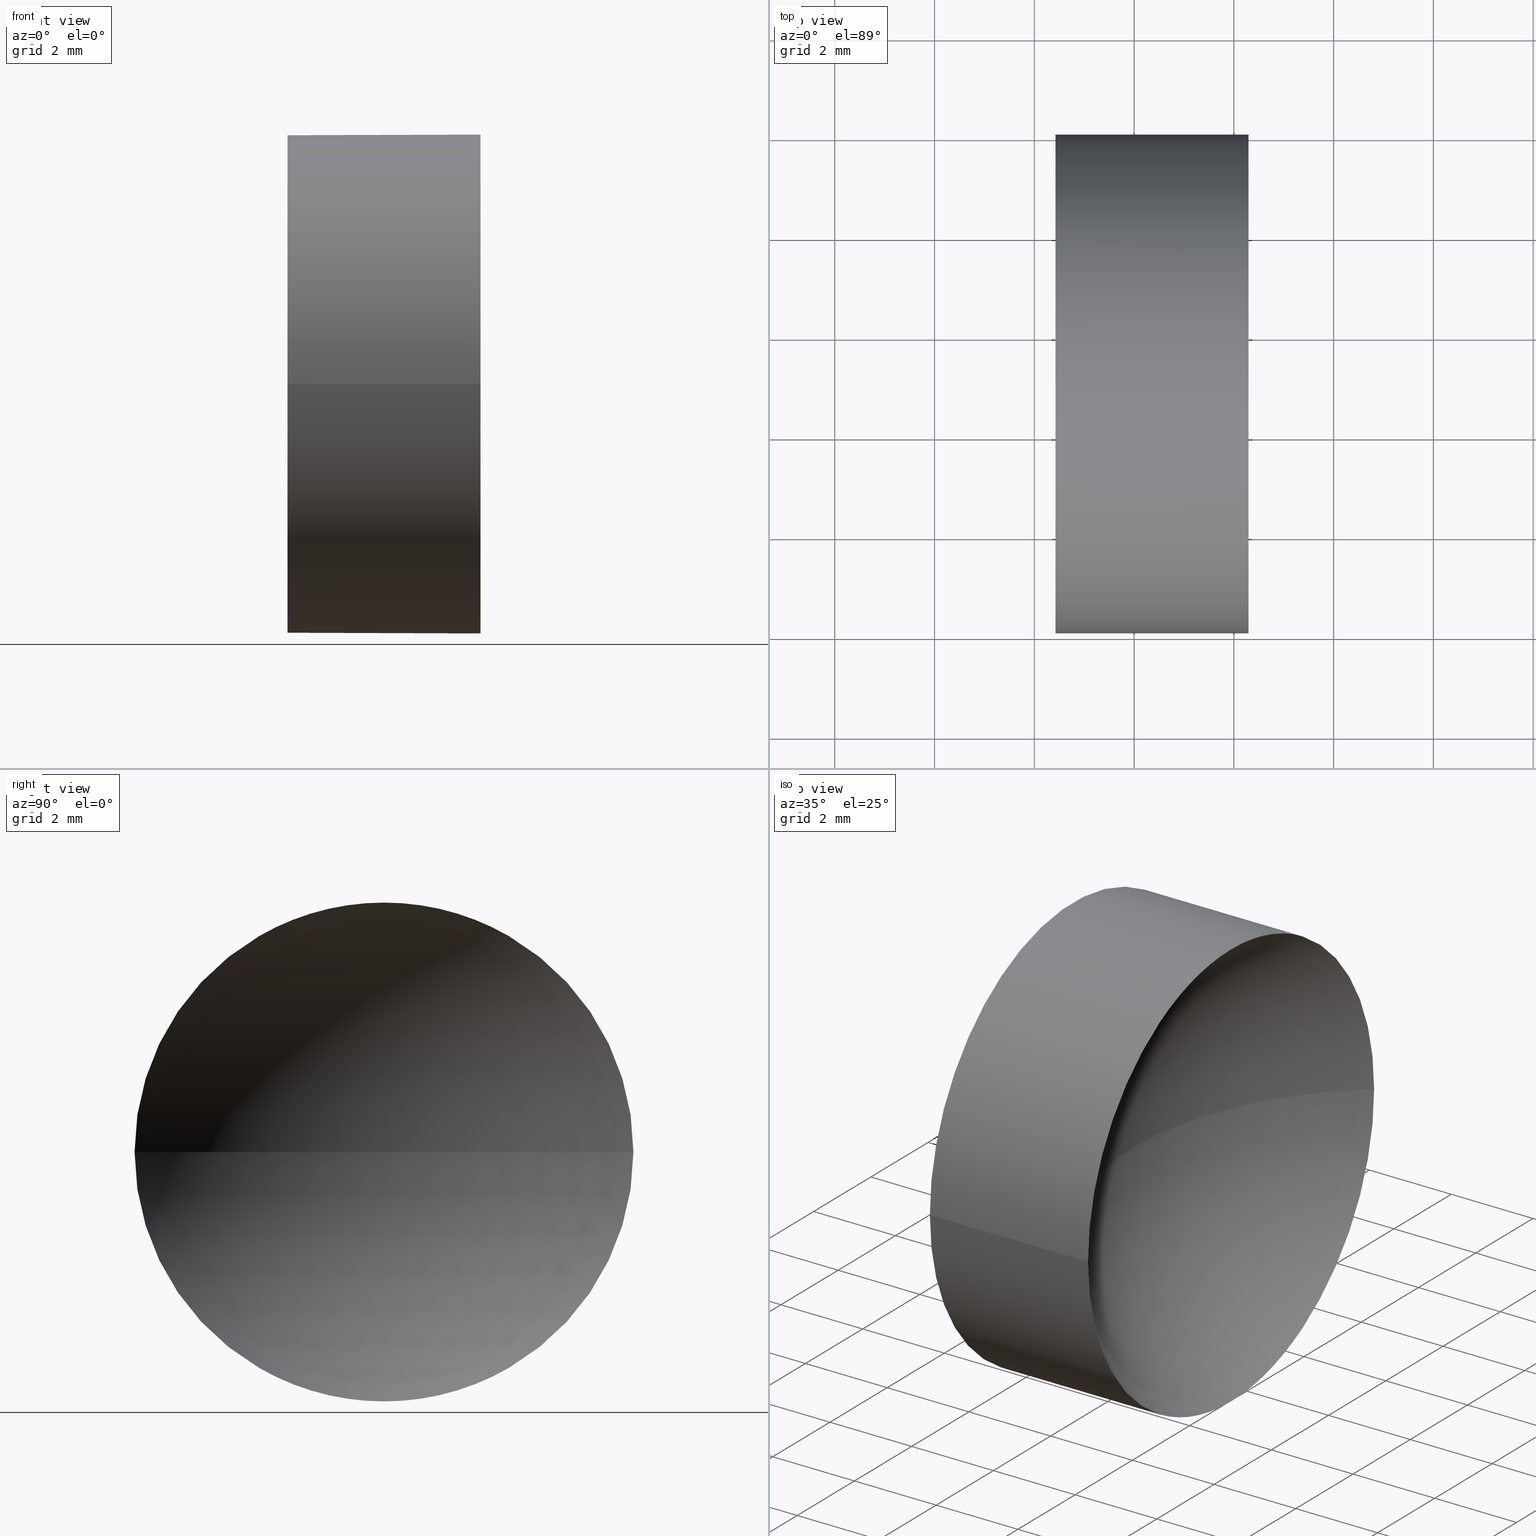
[diagram: canonical four-view strip — front | top / right | iso, engineering-drawing reading convention]
A machine part, canonical four-view strip (front | top / right | iso — engineering-drawing reading convention). The complete STEP part file that produces these views, byte-faithful:
ISO-10303-21;
HEADER;
FILE_DESCRIPTION (( 'STEP AP214' ),
    '1' );
FILE_NAME ('120130.STEP',
    '2019-06-19T02:17:15',
    ( '' ),
    ( '' ),
    'SwSTEP 2.0',
    'SolidWorks 2016',
    '' );
FILE_SCHEMA (( 'AUTOMOTIVE_DESIGN' ));
ENDSEC;

DATA;
#1 = DIRECTION ( 'NONE',  ( -1.000000000000000000, 3.159171411554934600E-016, -0.0000000000000000000 ) ) ;
#2 = EDGE_LOOP ( 'NONE', ( #71, #49, #50 ) ) ;
#3 = DIRECTION ( 'NONE',  ( -3.868869157118576300E-032, -1.224646799147353200E-016, 1.000000000000000000 ) ) ;
#4 =( NAMED_UNIT ( * ) PLANE_ANGLE_UNIT ( ) SI_UNIT ( $, .RADIAN. ) );
#5 = DIRECTION ( 'NONE',  ( 0.0000000000000000000, -0.0000000000000000000, -1.000000000000000000 ) ) ;
#6 = EDGE_CURVE ( 'NONE', #61, #115, #154, .T. ) ;
#7 = SURFACE_STYLE_FILL_AREA ( #151 ) ;
#8 = CIRCLE ( 'NONE', #165, 6.460000000000000900 ) ;
#9 = CIRCLE ( 'NONE', #74, 5.000000000000002700 ) ;
#10 = EDGE_CURVE ( 'NONE', #105, #77, #127, .T. ) ;
#11 = EDGE_CURVE ( 'NONE', #105, #104, #9, .T. ) ;
#12 = CARTESIAN_POINT ( 'NONE',  ( 22.42423205362066000, 13.03112609140304200, 0.0000000000000000000 ) ) ;
#13 = PLANE ( 'NONE',  #39 ) ;
#14 = ADVANCED_FACE ( 'NONE', ( #41 ), #13, .F. ) ;
#15 = ORIENTED_EDGE ( 'NONE', *, *, #16, .T. ) ;
#16 = EDGE_CURVE ( 'NONE', #104, #77, #8, .T. ) ;
#17 = ORIENTED_EDGE ( 'NONE', *, *, #47, .F. ) ;
#18 = STYLED_ITEM ( 'NONE', ( #34 ), #90 ) ;
#19 = PRODUCT_DEFINITION_SHAPE ( 'NONE', 'NONE',  #22 ) ;
#20 = EDGE_CURVE ( 'NONE', #105, #61, #152, .T. ) ;
#21 = ORIENTED_EDGE ( 'NONE', *, *, #10, .F. ) ;
#22 = PRODUCT_DEFINITION ( 'δ֪', '', #134, #68 ) ;
#23 = DIRECTION ( 'NONE',  ( 3.159171411554934600E-016, 1.000000000000000000, 0.0000000000000000000 ) ) ;
#24 = FILL_AREA_STYLE_COLOUR ( '', #46 ) ;
#25 = DIRECTION ( 'NONE',  ( 0.0000000000000000000, -1.000000000000000000, 0.0000000000000000000 ) ) ;
#26 = DIRECTION ( 'NONE',  ( -5.370660916336863500E-016, -1.000000000000000000, 0.0000000000000000000 ) ) ;
#27 = DIRECTION ( 'NONE',  ( -1.000000000000000000, 0.0000000000000000000, 0.0000000000000000000 ) ) ;
#28 = VECTOR ( 'NONE', #103, 1000.000000000000000 ) ;
#29 = AXIS2_PLACEMENT_3D ( 'NONE', #156, #124, #69 ) ;
#30 = AXIS2_PLACEMENT_3D ( 'NONE', #135, #160, #129 ) ;
#31 = SURFACE_STYLE_USAGE ( .BOTH. , #113 ) ;
#32 = STYLED_ITEM ( 'NONE', ( #150 ), #121 ) ;
#33 = PRESENTATION_LAYER_ASSIGNMENT (  '', '', ( #18 ) ) ;
#34 = PRESENTATION_STYLE_ASSIGNMENT (( #31 ) ) ;
#35 = AXIS2_PLACEMENT_3D ( 'NONE', #83, #67, #96 ) ;
#36 = CARTESIAN_POINT ( 'NONE',  ( 26.29380420313851700, 18.03112609140304600, 6.123233995736769200E-016 ) ) ;
#37 = ADVANCED_FACE ( 'NONE', ( #140 ), #60, .T. ) ;
#38 = CARTESIAN_POINT ( 'NONE',  ( 21.50597511808246100, 18.03112609140304200, 6.123233995736768300E-016 ) ) ;
#39 = AXIS2_PLACEMENT_3D ( 'NONE', #40, #94, #23 ) ;
#40 = CARTESIAN_POINT ( 'NONE',  ( 22.42423205362066000, 13.03112609140304200, 0.0000000000000000000 ) ) ;
#41 = FACE_OUTER_BOUND ( 'NONE', #164, .T. ) ;
#42 = EDGE_LOOP ( 'NONE', ( #128, #159, #112, #141 ) ) ;
#43 = AXIS2_PLACEMENT_3D ( 'NONE', #12, #149, #63 ) ;
#44 = PRODUCT_CONTEXT ( 'NONE', #57, 'mechanical' ) ;
#45 = UNCERTAINTY_MEASURE_WITH_UNIT (LENGTH_MEASURE( 1.000000000000000100E-005 ), #142, 'distance_accuracy_value', 'NONE');
#46 = COLOUR_RGB ( '',1.000000000000000000, 1.000000000000000000, 1.000000000000000000 ) ;
#47 = EDGE_CURVE ( 'NONE', #104, #105, #79, .T. ) ;
#48 = SPHERICAL_SURFACE ( 'NONE', #55, 6.460000000000000900 ) ;
#49 = ORIENTED_EDGE ( 'NONE', *, *, #10, .T. ) ;
#50 = ORIENTED_EDGE ( 'NONE', *, *, #16, .F. ) ;
#51 = CARTESIAN_POINT ( 'NONE',  ( 22.42423205362066000, 8.031126091403040200, 0.0000000000000000000 ) ) ;
#52 = ADVANCED_FACE ( 'NONE', ( #76 ), #117, .F. ) ;
#53 = PRESENTATION_LAYER_ASSIGNMENT (  '', '', ( #32 ) ) ;
#54 = SURFACE_SIDE_STYLE ('',( #75 ) ) ;
#55 = AXIS2_PLACEMENT_3D ( 'NONE', #155, #111, #100 ) ;
#56 = CARTESIAN_POINT ( 'NONE',  ( 21.50597511808246100, 8.031126091403040200, 0.0000000000000000000 ) ) ;
#57 = APPLICATION_CONTEXT ( 'automotive_design' ) ;
#58 = AXIS2_PLACEMENT_3D ( 'NONE', #99, #106, #26 ) ;
#59 = ORIENTED_EDGE ( 'NONE', *, *, #118, .T. ) ;
#60 = CYLINDRICAL_SURFACE ( 'NONE', #162, 5.000000000000000900 ) ;
#61 = VERTEX_POINT ( 'NONE', #107 ) ;
#62 = AXIS2_PLACEMENT_3D ( 'NONE', #64, #138, #25 ) ;
#63 = DIRECTION ( 'NONE',  ( 0.0000000000000000000, -1.000000000000000000, 0.0000000000000000000 ) ) ;
#64 = CARTESIAN_POINT ( 'NONE',  ( 21.50597511808246100, 13.03112609140304200, 0.0000000000000000000 ) ) ;
#65 = DIRECTION ( 'NONE',  ( 0.0000000000000000000, -1.000000000000000000, -1.224646799147353200E-016 ) ) ;
#66 = ORIENTED_EDGE ( 'NONE', *, *, #130, .F. ) ;
#67 = DIRECTION ( 'NONE',  ( -1.000000000000000000, 3.159171411554934600E-016, -0.0000000000000000000 ) ) ;
#68 = PRODUCT_DEFINITION_CONTEXT ( 'detailed design', #102, 'design' ) ;
#69 = DIRECTION ( 'NONE',  ( 0.0000000000000000000, -1.000000000000000000, 0.0000000000000000000 ) ) ;
#70 =( NAMED_UNIT ( * ) SI_UNIT ( $, .STERADIAN. ) SOLID_ANGLE_UNIT ( ) );
#71 = ORIENTED_EDGE ( 'NONE', *, *, #11, .F. ) ;
#72 = APPLICATION_PROTOCOL_DEFINITION ( 'draft international standard', 'automotive_design', 1998, #57 ) ;
#73 =( NAMED_UNIT ( * ) PLANE_ANGLE_UNIT ( ) SI_UNIT ( $, .RADIAN. ) );
#74 = AXIS2_PLACEMENT_3D ( 'NONE', #122, #95, #146 ) ;
#75 = SURFACE_STYLE_FILL_AREA ( #82 ) ;
#76 = FACE_OUTER_BOUND ( 'NONE', #133, .T. ) ;
#77 = VERTEX_POINT ( 'NONE', #137 ) ;
#78 = UNCERTAINTY_MEASURE_WITH_UNIT (LENGTH_MEASURE( 1.000000000000000100E-005 ), #84, 'distance_accuracy_value', 'NONE');
#79 = CIRCLE ( 'NONE', #29, 5.000000000000002700 ) ;
#80 = DIRECTION ( 'NONE',  ( -1.000000000000000000, 3.159171411554934600E-016, -0.0000000000000000000 ) ) ;
#81 = ORIENTED_EDGE ( 'NONE', *, *, #118, .F. ) ;
#82 = FILL_AREA_STYLE ('',( #24 ) ) ;
#83 = CARTESIAN_POINT ( 'NONE',  ( 22.42423205362066000, 13.03112609140304200, 0.0000000000000000000 ) ) ;
#84 =( LENGTH_UNIT ( ) NAMED_UNIT ( * ) SI_UNIT ( .MILLI., .METRE. ) );
#85 = CARTESIAN_POINT ( 'NONE',  ( 30.38423205362066100, 13.03112609140304000, 0.0000000000000000000 ) ) ;
#86 = FACE_OUTER_BOUND ( 'NONE', #2, .T. ) ;
#87 = MECHANICAL_DESIGN_GEOMETRIC_PRESENTATION_REPRESENTATION (  '', ( #32 ), #131 ) ;
#88 = FACE_OUTER_BOUND ( 'NONE', #166, .T. ) ;
#89 = PRODUCT ( '120130', '120130', '', ( #44 ) ) ;
#90 = ADVANCED_BREP_SHAPE_REPRESENTATION ( '120130', ( #121, #30 ), #143 ) ;
#91 = PRODUCT_RELATED_PRODUCT_CATEGORY ( 'part', '', ( #89 ) ) ;
#92 = COLOUR_RGB ( '',1.000000000000000000, 1.000000000000000000, 1.000000000000000000 ) ;
#93 = LINE ( 'NONE', #56, #28 ) ;
#94 = DIRECTION ( 'NONE',  ( 1.000000000000000000, -3.159171411554934600E-016, 0.0000000000000000000 ) ) ;
#95 = DIRECTION ( 'NONE',  ( -1.000000000000000000, 3.159171411554934600E-016, -0.0000000000000000000 ) ) ;
#96 = DIRECTION ( 'NONE',  ( 0.0000000000000000000, -1.000000000000000000, 0.0000000000000000000 ) ) ;
#97 =( NAMED_UNIT ( * ) SI_UNIT ( $, .STERADIAN. ) SOLID_ANGLE_UNIT ( ) );
#98 = ADVANCED_FACE ( 'NONE', ( #88 ), #108, .T. ) ;
#99 = CARTESIAN_POINT ( 'NONE',  ( 30.38423205362066100, 13.03112609140304000, 0.0000000000000000000 ) ) ;
#100 = DIRECTION ( 'NONE',  ( -5.370660916336863500E-016, -1.000000000000000000, 0.0000000000000000000 ) ) ;
#101 =( NAMED_UNIT ( * ) PLANE_ANGLE_UNIT ( ) SI_UNIT ( $, .RADIAN. ) );
#102 = APPLICATION_CONTEXT ( 'automotive_design' ) ;
#103 = DIRECTION ( 'NONE',  ( -1.000000000000000000, 3.159171411554934600E-016, -0.0000000000000000000 ) ) ;
#104 = VERTEX_POINT ( 'NONE', #120 ) ;
#105 = VERTEX_POINT ( 'NONE', #36 ) ;
#106 = DIRECTION ( 'NONE',  ( 0.0000000000000000000, 0.0000000000000000000, 1.000000000000000000 ) ) ;
#107 = CARTESIAN_POINT ( 'NONE',  ( 22.42423205362066000, 18.03112609140304200, 6.123233995736768300E-016 ) ) ;
#108 = CYLINDRICAL_SURFACE ( 'NONE', #62, 5.000000000000000900 ) ;
#109 = APPLICATION_PROTOCOL_DEFINITION ( 'draft international standard', 'automotive_design', 1998, #102 ) ;
#110 =( NAMED_UNIT ( * ) SI_UNIT ( $, .STERADIAN. ) SOLID_ANGLE_UNIT ( ) );
#111 = DIRECTION ( 'NONE',  ( 0.0000000000000000000, 0.0000000000000000000, 1.000000000000000000 ) ) ;
#112 = ORIENTED_EDGE ( 'NONE', *, *, #130, .T. ) ;
#113 = SURFACE_SIDE_STYLE ('',( #7 ) ) ;
#114 = CIRCLE ( 'NONE', #35, 5.000000000000000900 ) ;
#115 = VERTEX_POINT ( 'NONE', #51 ) ;
#116 = VECTOR ( 'NONE', #1, 1000.000000000000000 ) ;
#117 = SPHERICAL_SURFACE ( 'NONE', #58, 6.460000000000000900 ) ;
#118 = EDGE_CURVE ( 'NONE', #115, #61, #114, .T. ) ;
#119 = ORIENTED_EDGE ( 'NONE', *, *, #6, .T. ) ;
#120 = CARTESIAN_POINT ( 'NONE',  ( 26.29380420313851700, 8.031126091403036700, 0.0000000000000000000 ) ) ;
#121 = MANIFOLD_SOLID_BREP ( '��ת1', #136 ) ;
#122 = CARTESIAN_POINT ( 'NONE',  ( 26.29380420313851700, 13.03112609140304000, 0.0000000000000000000 ) ) ;
#123 =( GEOMETRIC_REPRESENTATION_CONTEXT ( 3 ) GLOBAL_UNCERTAINTY_ASSIGNED_CONTEXT ( ( #45 ) ) GLOBAL_UNIT_ASSIGNED_CONTEXT ( ( #142, #73, #70 ) ) REPRESENTATION_CONTEXT ( 'NONE', 'WORKASPACE' ) );
#124 = DIRECTION ( 'NONE',  ( -1.000000000000000000, 3.159171411554934600E-016, -0.0000000000000000000 ) ) ;
#125 =( LENGTH_UNIT ( ) NAMED_UNIT ( * ) SI_UNIT ( .MILLI., .METRE. ) );
#126 = CARTESIAN_POINT ( 'NONE',  ( 30.38423205362066100, 13.03112609140304000, 0.0000000000000000000 ) ) ;
#127 = CIRCLE ( 'NONE', #157, 6.460000000000000900 ) ;
#128 = ORIENTED_EDGE ( 'NONE', *, *, #20, .F. ) ;
#129 = DIRECTION ( 'NONE',  ( 1.000000000000000000, 0.0000000000000000000, 0.0000000000000000000 ) ) ;
#130 = EDGE_CURVE ( 'NONE', #104, #115, #93, .T. ) ;
#131 =( GEOMETRIC_REPRESENTATION_CONTEXT ( 3 ) GLOBAL_UNCERTAINTY_ASSIGNED_CONTEXT ( ( #78 ) ) GLOBAL_UNIT_ASSIGNED_CONTEXT ( ( #84, #4, #97 ) ) REPRESENTATION_CONTEXT ( 'NONE', 'WORKASPACE' ) );
#132 = ORIENTED_EDGE ( 'NONE', *, *, #20, .T. ) ;
#133 = EDGE_LOOP ( 'NONE', ( #21, #17, #15 ) ) ;
#134 = PRODUCT_DEFINITION_FORMATION_WITH_SPECIFIED_SOURCE ( '�κ�', '', #89, .NOT_KNOWN. ) ;
#135 = CARTESIAN_POINT ( 'NONE',  ( 0.0000000000000000000, 0.0000000000000000000, 0.0000000000000000000 ) ) ;
#136 = CLOSED_SHELL ( 'NONE', ( #98, #147, #52, #37, #14 ) ) ;
#137 = CARTESIAN_POINT ( 'NONE',  ( 23.92423205362066000, 13.03112609140304200, 0.0000000000000000000 ) ) ;
#138 = DIRECTION ( 'NONE',  ( -1.000000000000000000, 3.159171411554934600E-016, -0.0000000000000000000 ) ) ;
#139 = DIRECTION ( 'NONE',  ( 0.0000000000000000000, -1.000000000000000000, 0.0000000000000000000 ) ) ;
#140 = FACE_OUTER_BOUND ( 'NONE', #42, .T. ) ;
#141 = ORIENTED_EDGE ( 'NONE', *, *, #6, .F. ) ;
#142 =( LENGTH_UNIT ( ) NAMED_UNIT ( * ) SI_UNIT ( .MILLI., .METRE. ) );
#143 =( GEOMETRIC_REPRESENTATION_CONTEXT ( 3 ) GLOBAL_UNCERTAINTY_ASSIGNED_CONTEXT ( ( #163 ) ) GLOBAL_UNIT_ASSIGNED_CONTEXT ( ( #125, #101, #110 ) ) REPRESENTATION_CONTEXT ( 'NONE', 'WORKASPACE' ) );
#144 = SHAPE_DEFINITION_REPRESENTATION ( #19, #90 ) ;
#145 = CARTESIAN_POINT ( 'NONE',  ( 21.50597511808246100, 13.03112609140304200, 0.0000000000000000000 ) ) ;
#146 = DIRECTION ( 'NONE',  ( 0.0000000000000000000, -1.000000000000000000, 0.0000000000000000000 ) ) ;
#147 = ADVANCED_FACE ( 'NONE', ( #86 ), #48, .F. ) ;
#148 = SURFACE_STYLE_USAGE ( .BOTH. , #54 ) ;
#149 = DIRECTION ( 'NONE',  ( -1.000000000000000000, 3.159171411554934600E-016, -0.0000000000000000000 ) ) ;
#150 = PRESENTATION_STYLE_ASSIGNMENT (( #148 ) ) ;
#151 = FILL_AREA_STYLE ('',( #153 ) ) ;
#152 = LINE ( 'NONE', #38, #116 ) ;
#153 = FILL_AREA_STYLE_COLOUR ( '', #92 ) ;
#154 = CIRCLE ( 'NONE', #43, 5.000000000000000900 ) ;
#155 = CARTESIAN_POINT ( 'NONE',  ( 30.38423205362066100, 13.03112609140304000, 0.0000000000000000000 ) ) ;
#156 = CARTESIAN_POINT ( 'NONE',  ( 26.29380420313851700, 13.03112609140304000, 0.0000000000000000000 ) ) ;
#157 = AXIS2_PLACEMENT_3D ( 'NONE', #126, #3, #65 ) ;
#158 = MECHANICAL_DESIGN_GEOMETRIC_PRESENTATION_REPRESENTATION (  '', ( #18 ), #123 ) ;
#159 = ORIENTED_EDGE ( 'NONE', *, *, #11, .T. ) ;
#160 = DIRECTION ( 'NONE',  ( 0.0000000000000000000, 0.0000000000000000000, 1.000000000000000000 ) ) ;
#161 = ORIENTED_EDGE ( 'NONE', *, *, #47, .T. ) ;
#162 = AXIS2_PLACEMENT_3D ( 'NONE', #145, #80, #139 ) ;
#163 = UNCERTAINTY_MEASURE_WITH_UNIT (LENGTH_MEASURE( 1.000000000000000100E-005 ), #125, 'distance_accuracy_value', 'NONE');
#164 = EDGE_LOOP ( 'NONE', ( #59, #119 ) ) ;
#165 = AXIS2_PLACEMENT_3D ( 'NONE', #85, #5, #27 ) ;
#166 = EDGE_LOOP ( 'NONE', ( #161, #132, #81, #66 ) ) ;
ENDSEC;
END-ISO-10303-21;
